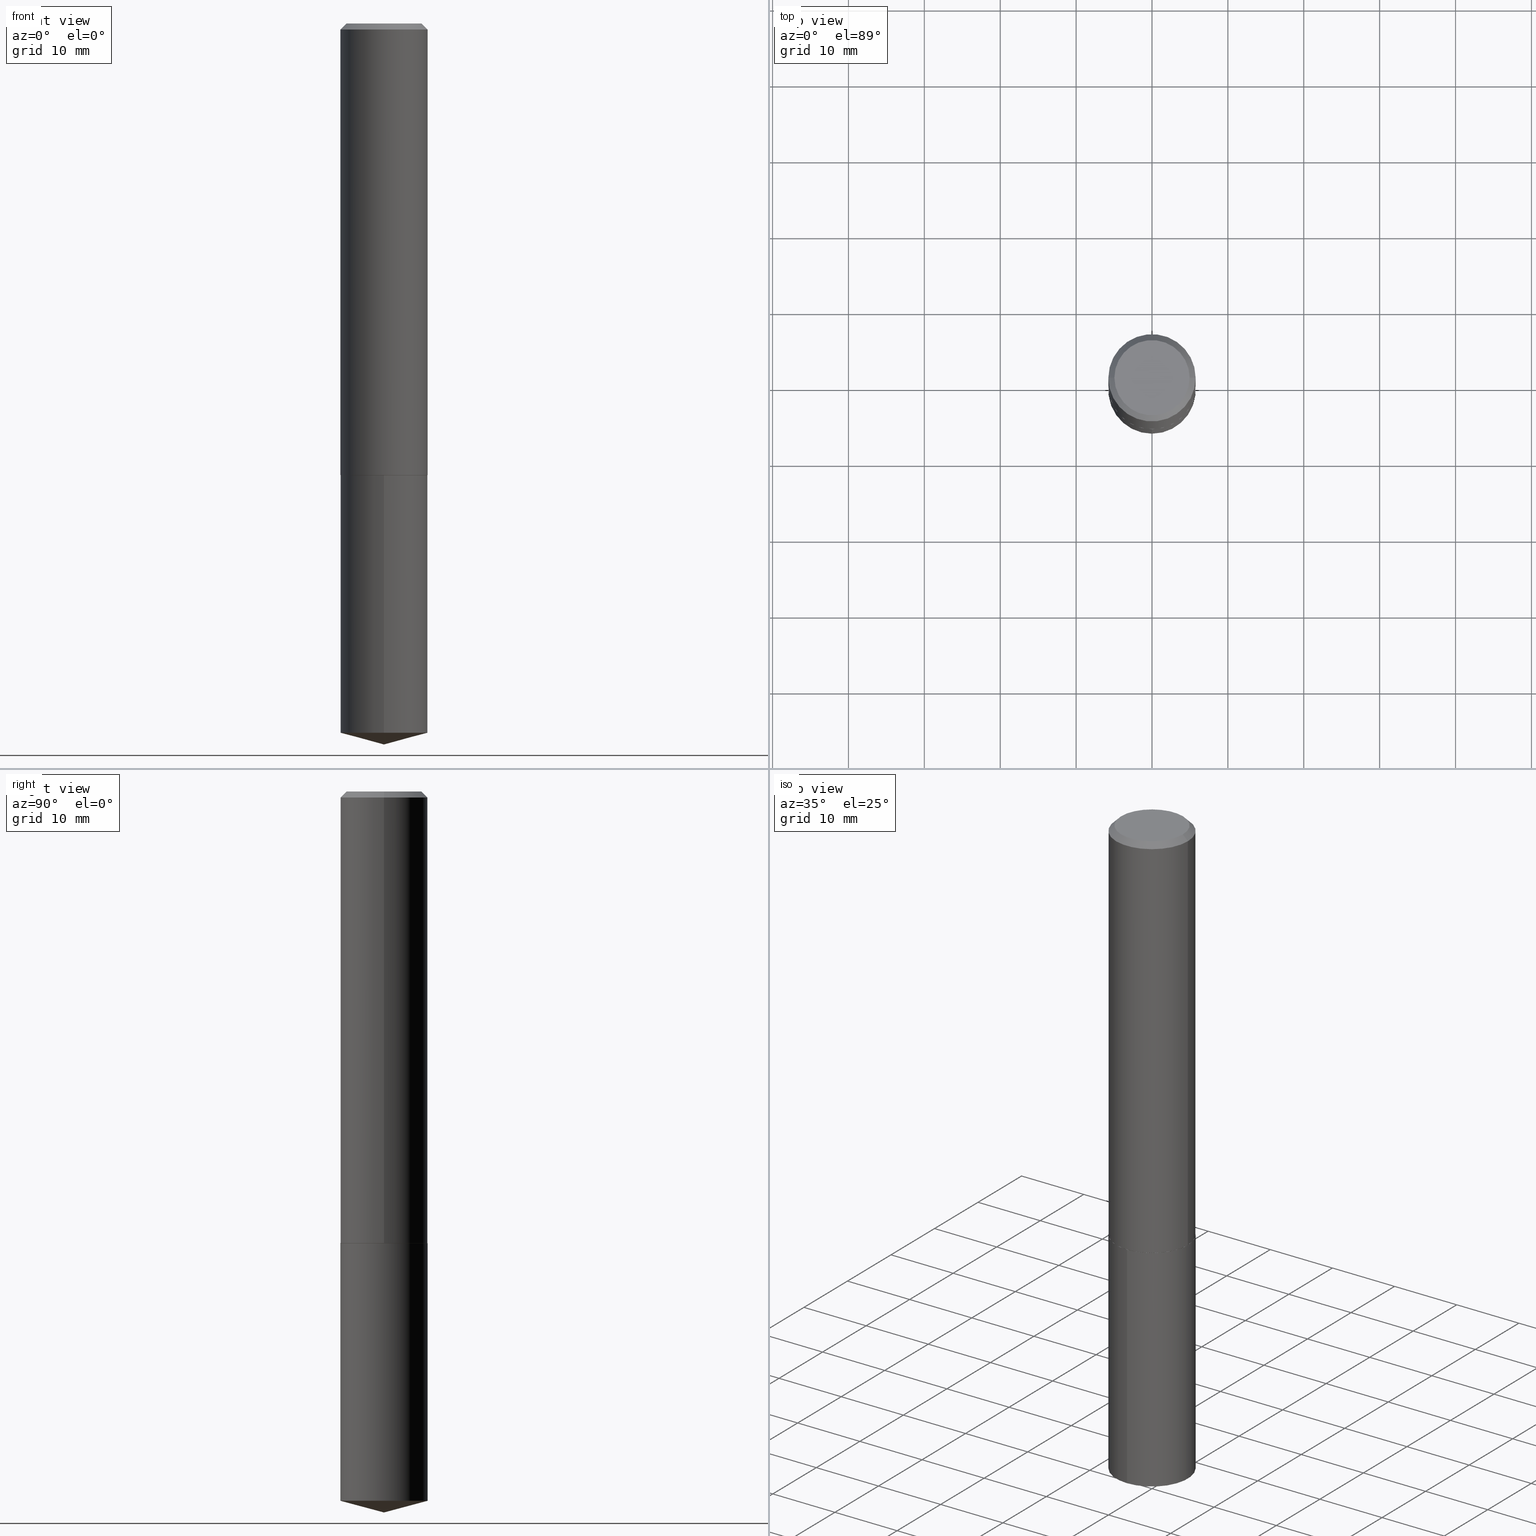
[diagram: canonical four-view strip — front | top / right | iso, engineering-drawing reading convention]
A machine part, canonical four-view strip (front | top / right | iso — engineering-drawing reading convention). The complete STEP part file that produces these views, byte-faithful:
ISO-10303-21;
HEADER;
FILE_DESCRIPTION (( 'STEP AP203' ),
    '1' );
FILE_NAME ('63033.STEP',
    '2024-04-23T08:12:41',
    ( '' ),
    ( '' ),
    'SwSTEP 2.0',
    'SolidWorks 2023',
    '' );
FILE_SCHEMA (( 'CONFIG_CONTROL_DESIGN' ));
ENDSEC;

DATA;
#1 = ADVANCED_FACE ( 'NONE', ( #290 ), #223, .T. ) ;
#2 = VECTOR ( 'NONE', #175, 39.37007874015748143 ) ;
#3 = DIRECTION ( 'NONE',  ( -0.7071067811865453523, 2.468850131082234184E-15, -0.7071067811865496822 ) ) ;
#4 = VERTEX_POINT ( 'NONE', #174 ) ;
#5 = LINE ( 'NONE', #368, #215 ) ;
#6 = CARTESIAN_POINT ( 'NONE',  ( -0.2264000000000002399, -6.568729689943663305E-15, -2.342100000000000293 ) ) ;
#7 = CLOSED_SHELL ( 'NONE', ( #222, #249, #322, #250, #9, #58, #125, #329 ) ) ;
#8 = AXIS2_PLACEMENT_3D ( 'NONE', #259, #189, #298 ) ;
#9 = ADVANCED_FACE ( 'NONE', ( #356 ), #291, .T. ) ;
#10 = EDGE_CURVE ( 'NONE', #34, #81, #168, .T. ) ;
#11 = DIRECTION ( 'NONE',  ( 0.000000000000000000, 0.000000000000000000, 1.000000000000000000 ) ) ;
#12 = DIRECTION ( 'NONE',  ( -2.445468806185136877E-29, 3.491481338843145188E-15, 1.000000000000000000 ) ) ;
#13 = APPLICATION_PROTOCOL_DEFINITION ( 'international standard', 'config_control_design', 1994, #102 ) ;
#14 = SECURITY_CLASSIFICATION_LEVEL ( 'unclassified' ) ;
#15 = DIRECTION ( 'NONE',  ( -2.445529673311821872E-29, 3.491394173653390530E-15, 1.000000000000000000 ) ) ;
#16 = COORDINATED_UNIVERSAL_TIME_OFFSET ( 5, 0, .BEHIND. ) ;
#17 =( NAMED_UNIT ( * ) SI_UNIT ( $, .STERADIAN. ) SOLID_ANGLE_UNIT ( ) );
#18 = DIRECTION ( 'NONE',  ( -2.445529673311821872E-29, 3.491394173653390530E-15, 1.000000000000000000 ) ) ;
#19 = FACE_OUTER_BOUND ( 'NONE', #127, .T. ) ;
#20 = DIRECTION ( 'NONE',  ( 6.863315791527700570E-15, 0.9659258262890704216, 0.2588190451025128569 ) ) ;
#21 = ORIENTED_EDGE ( 'NONE', *, *, #331, .T. ) ;
#22 = FACE_OUTER_BOUND ( 'NONE', #379, .T. ) ;
#23 = ORIENTED_EDGE ( 'NONE', *, *, #10, .T. ) ;
#24 = COORDINATED_UNIVERSAL_TIME_OFFSET ( 5, 0, .BEHIND. ) ;
#25 = AXIS2_PLACEMENT_3D ( 'NONE', #82, #313, #360 ) ;
#26 = EDGE_LOOP ( 'NONE', ( #85, #169, #120 ) ) ;
#27 = APPROVAL ( #41, 'UNSPECIFIED' ) ;
#28 = EDGE_LOOP ( 'NONE', ( #131, #364, #321, #311 ) ) ;
#29 = EDGE_CURVE ( 'NONE', #101, #195, #80, .T. ) ;
#30 = ADVANCED_FACE ( 'NONE', ( #19 ), #383, .T. ) ;
#31 = DIRECTION ( 'NONE',  ( -6.982962677686265922E-15, -1.000000000000000000, 3.619939920933211627E-15 ) ) ;
#32 = ORIENTED_EDGE ( 'NONE', *, *, #90, .T. ) ;
#33 = DIRECTION ( 'NONE',  ( -2.445468806185136597E-29, 3.491481338843145583E-15, 1.000000000000000000 ) ) ;
#34 = VERTEX_POINT ( 'NONE', #144 ) ;
#35 = AXIS2_PLACEMENT_3D ( 'NONE', #111, #199, #205 ) ;
#36 = APPROVAL_PERSON_ORGANIZATION ( #267, #286, #158 ) ;
#37 = PLANE ( 'NONE',  #91 ) ;
#38 = AXIS2_PLACEMENT_3D ( 'NONE', #71, #138, #31 ) ;
#39 = ADVANCED_BREP_SHAPE_REPRESENTATION ( '63033', ( #183, #191, #283 ), #216 ) ;
#40 = VECTOR ( 'NONE', #289, 39.37007874015748143 ) ;
#41 = APPROVAL_STATUS ( 'not_yet_approved' ) ;
#42 = ORGANIZATION ( 'UNSPECIFIED', 'UNSPECIFIED', '' ) ;
#43 = DIRECTION ( 'NONE',  ( -2.445468806185136877E-29, 3.491481338843145188E-15, 1.000000000000000000 ) ) ;
#44 = ADVANCED_FACE ( 'NONE', ( #53 ), #178, .T. ) ;
#45 = EDGE_LOOP ( 'NONE', ( #21, #354 ) ) ;
#46 = APPROVAL_DATE_TIME ( #261, #286 ) ;
#47 = DATE_AND_TIME ( #226, #274 ) ;
#48 = EDGE_CURVE ( 'NONE', #81, #195, #367, .T. ) ;
#49 = CIRCLE ( 'NONE', #147, 0.2263999999999999624 ) ;
#50 = CC_DESIGN_APPROVAL ( #286, ( #128 ) ) ;
#51 = EDGE_LOOP ( 'NONE', ( #310, #134 ) ) ;
#52 = CARTESIAN_POINT ( 'NONE',  ( 9.146772584766040956E-29, -1.305851248829841244E-14, -3.740200000000000191 ) ) ;
#53 = FACE_OUTER_BOUND ( 'NONE', #26, .T. ) ;
#54 = APPROVAL_DATE_TIME ( #373, #172 ) ;
#55 = CC_DESIGN_DATE_AND_TIME_ASSIGNMENT ( #275, #340, ( #69 ) ) ;
#56 = DIRECTION ( 'NONE',  ( 1.000000000000000000, -6.982962677686265133E-15, 0.000000000000000000 ) ) ;
#57 = EDGE_LOOP ( 'NONE', ( #344, #107, #380, #113 ) ) ;
#58 = ADVANCED_FACE ( 'NONE', ( #22 ), #359, .T. ) ;
#59 = FACE_OUTER_BOUND ( 'NONE', #51, .T. ) ;
#60 = CONICAL_SURFACE ( 'NONE', #342, 146.9311341562577695, 1.308996938995751869 ) ;
#61 = CARTESIAN_POINT ( 'NONE',  ( -0.1951499999999999624, 1.417279562469898159E-15, 1.206277097150418490E-18 ) ) ;
#62 = CARTESIAN_POINT ( 'NONE',  ( 5.727532490966208999E-29, -8.177398443704531239E-15, -2.342100000000000293 ) ) ;
#63 = DIRECTION ( 'NONE',  ( 1.000000000000000000, -6.982962677686269077E-15, 0.000000000000000000 ) ) ;
#64 = ORIENTED_EDGE ( 'NONE', *, *, #155, .F. ) ;
#65 = AXIS2_PLACEMENT_3D ( 'NONE', #264, #15, #204 ) ;
#66 = ORIENTED_EDGE ( 'NONE', *, *, #88, .F. ) ;
#67 = CARTESIAN_POINT ( 'NONE',  ( 7.642090019328599159E-31, -1.091087918388489774E-16, -0.03125000000000019429 ) ) ;
#68 = CONICAL_SURFACE ( 'NONE', #162, 0.2264000000000002399, 0.7853981633966629072 ) ;
#69 = SECURITY_CLASSIFICATION ( '', '', #14 ) ;
#70 = CARTESIAN_POINT ( 'NONE',  ( 0.2264000000000001012, -1.580942750228171416E-15, 1.103966422040200291E-29 ) ) ;
#71 = CARTESIAN_POINT ( 'NONE',  ( 5.728755225369301801E-29, -8.179144184373953531E-15, -2.342600000000000016 ) ) ;
#72 = CARTESIAN_POINT ( 'NONE',  ( 1.608668753760956681E-15, 0.2263999999999871671, -3.679536302833595673 ) ) ;
#73 = AXIS2_PLACEMENT_3D ( 'NONE', #164, #135, #265 ) ;
#74 = PERSON_AND_ORGANIZATION ( #115, #42 ) ;
#75 = LINE ( 'NONE', #214, #324 ) ;
#76 = CC_DESIGN_PERSON_AND_ORGANIZATION_ASSIGNMENT ( #375, #100, ( #69 ) ) ;
#77 = PRODUCT_DEFINITION ( 'UNKNOWN', '', #128, #166 ) ;
#78 = DIRECTION ( 'NONE',  ( -6.982962677686265922E-15, -1.000000000000000000, 3.619939920933211627E-15 ) ) ;
#79 = CIRCLE ( 'NONE', #209, 0.2263999999999999624 ) ;
#80 = LINE ( 'NONE', #198, #273 ) ;
#81 = VERTEX_POINT ( 'NONE', #325 ) ;
#82 = CARTESIAN_POINT ( 'NONE',  ( 7.642090019328599159E-31, -1.091087918388489774E-16, -0.03125000000000019429 ) ) ;
#83 = CIRCLE ( 'NONE', #253, 0.2259000000000011277 ) ;
#84 = DIRECTION ( 'NONE',  ( 1.000000000000000000, -6.982962677686265922E-15, 0.000000000000000000 ) ) ;
#85 = ORIENTED_EDGE ( 'NONE', *, *, #190, .F. ) ;
#86 = COORDINATED_UNIVERSAL_TIME_OFFSET ( 5, 0, .BEHIND. ) ;
#87 = DIRECTION ( 'NONE',  ( -1.000000000000000000, 6.982962677686265922E-15, 0.000000000000000000 ) ) ;
#88 = EDGE_CURVE ( 'NONE', #181, #137, #75, .T. ) ;
#89 = DIRECTION ( 'NONE',  ( -2.445529673311821591E-29, 3.491394173653390530E-15, 1.000000000000000000 ) ) ;
#90 = EDGE_CURVE ( 'NONE', #34, #101, #369, .T. ) ;
#91 = AXIS2_PLACEMENT_3D ( 'NONE', #366, #148, #121 ) ;
#92 = CARTESIAN_POINT ( 'NONE',  ( 5.728755225369301801E-29, -8.179144184373953531E-15, -2.342600000000000016 ) ) ;
#93 = ORIENTED_EDGE ( 'NONE', *, *, #365, .T. ) ;
#94 = APPLICATION_PROTOCOL_DEFINITION ( 'international standard', 'config_control_design', 1994, #262 ) ;
#95 = CARTESIAN_POINT ( 'NONE',  ( 0.000000000000000000, 0.000000000000000000, 0.000000000000000000 ) ) ;
#96 = CLOSED_SHELL ( 'NONE', ( #1, #44, #240, #30, #233 ) ) ;
#97 = CIRCLE ( 'NONE', #260, 0.2263999999999999624 ) ;
#98 = LOCAL_TIME ( 4, 12, 41.00000000000000000, #104 ) ;
#99 = EDGE_CURVE ( 'NONE', #315, #303, #79, .T. ) ;
#100 = PERSON_AND_ORGANIZATION_ROLE ( 'classification_officer' ) ;
#101 = VERTEX_POINT ( 'NONE', #219 ) ;
#102 = APPLICATION_CONTEXT ( 'configuration controlled 3d designs of mechanical parts and assemblies' ) ;
#103 = CARTESIAN_POINT ( 'NONE',  ( 5.727532490966208999E-29, -8.177398443704531239E-15, -2.342100000000000293 ) ) ;
#104 = COORDINATED_UNIVERSAL_TIME_OFFSET ( 5, 0, .BEHIND. ) ;
#105 = EDGE_CURVE ( 'NONE', #81, #137, #349, .T. ) ;
#106 = AXIS2_PLACEMENT_3D ( 'NONE', #103, #114, #229 ) ;
#107 = ORIENTED_EDGE ( 'NONE', *, *, #218, .T. ) ;
#108 = CARTESIAN_POINT ( 'NONE',  ( 0.2264000000000002399, -9.758341193932704824E-15, -2.342100000000000293 ) ) ;
#109 = VERTEX_POINT ( 'NONE', #72 ) ;
#110 = EDGE_CURVE ( 'NONE', #361, #109, #282, .T. ) ;
#111 = CARTESIAN_POINT ( 'NONE',  ( 0.000000000000000000, 0.000000000000000000, 0.000000000000000000 ) ) ;
#112 = CYLINDRICAL_SURFACE ( 'NONE', #35, 0.2264000000000001012 ) ;
#113 = ORIENTED_EDGE ( 'NONE', *, *, #105, .F. ) ;
#114 = DIRECTION ( 'NONE',  ( -2.445468806185136597E-29, 3.491481338843145583E-15, 1.000000000000000000 ) ) ;
#115 = PERSON ( 'UNSPECIFIED', 'UNSPECIFIED', 'UNSPECIFIED', ('UNSPECIFIED'), ('UNSPECIFIED'), ('UNSPECIFIED') ) ;
#116 = FACE_OUTER_BOUND ( 'NONE', #179, .T. ) ;
#117 = AXIS2_PLACEMENT_3D ( 'NONE', #385, #343, #87 ) ;
#118 = ORIENTED_EDGE ( 'NONE', *, *, #29, .T. ) ;
#119 = CARTESIAN_POINT ( 'NONE',  ( 5.727532490966208999E-29, -8.177398443704531239E-15, -2.342100000000000293 ) ) ;
#120 = ORIENTED_EDGE ( 'NONE', *, *, #110, .F. ) ;
#121 = DIRECTION ( 'NONE',  ( -1.000000000000000000, 6.982962677686265922E-15, -4.876176775795935793E-29 ) ) ;
#122 = ORIENTED_EDGE ( 'NONE', *, *, #48, .F. ) ;
#123 = CC_DESIGN_PERSON_AND_ORGANIZATION_ASSIGNMENT ( #192, #297, ( #128 ) ) ;
#124 = CC_DESIGN_PERSON_AND_ORGANIZATION_ASSIGNMENT ( #221, #350, ( #372 ) ) ;
#125 = ADVANCED_FACE ( 'NONE', ( #234 ), #126, .T. ) ;
#126 = CONICAL_SURFACE ( 'NONE', #25, 0.2263999999999999624, 0.7853981633974452814 ) ;
#127 = EDGE_LOOP ( 'NONE', ( #277, #165, #207, #143 ) ) ;
#128 = PRODUCT_DEFINITION_FORMATION_WITH_SPECIFIED_SOURCE ( 'ANY', '', #372, .NOT_KNOWN. ) ;
#129 = DIRECTION ( 'NONE',  ( -2.445468806185136597E-29, 3.491481338843145583E-15, 1.000000000000000000 ) ) ;
#130 = EDGE_CURVE ( 'NONE', #109, #361, #238, .T. ) ;
#131 = ORIENTED_EDGE ( 'NONE', *, *, #110, .T. ) ;
#132 = COORDINATED_UNIVERSAL_TIME_OFFSET ( 5, 0, .BEHIND. ) ;
#133 = CARTESIAN_POINT ( 'NONE',  ( 9.146484909458931815E-29, -1.305892087464545381E-14, -3.740200000000000191 ) ) ;
#134 = ORIENTED_EDGE ( 'NONE', *, *, #293, .F. ) ;
#135 = DIRECTION ( 'NONE',  ( -2.445529673311821872E-29, 3.491394173653390530E-15, 1.000000000000000000 ) ) ;
#136 = APPROVAL_DATE_TIME ( #335, #27 ) ;
#137 = VERTEX_POINT ( 'NONE', #227 ) ;
#138 = DIRECTION ( 'NONE',  ( -2.445529673311821872E-29, 3.491394173653390530E-15, 1.000000000000000000 ) ) ;
#139 = AXIS2_PLACEMENT_3D ( 'NONE', #95, #129, #251 ) ;
#140 = FACE_OUTER_BOUND ( 'NONE', #382, .T. ) ;
#141 = ORIENTED_EDGE ( 'NONE', *, *, #272, .T. ) ;
#142 = CARTESIAN_POINT ( 'NONE',  ( 7.642090019328599159E-31, -1.091087918388489774E-16, -0.03125000000000019429 ) ) ;
#143 = ORIENTED_EDGE ( 'NONE', *, *, #99, .F. ) ;
#144 = CARTESIAN_POINT ( 'NONE',  ( 0.2259000000000011277, -9.756595453263288842E-15, -2.342600000000000016 ) ) ;
#145 = CARTESIAN_POINT ( 'NONE',  ( 5.727532490966208999E-29, -8.177398443704531239E-15, -2.342100000000000293 ) ) ;
#146 = CARTESIAN_POINT ( 'NONE',  ( -1.580942750228113237E-15, -0.2264000000000081780, -2.342599999999999127 ) ) ;
#147 = AXIS2_PLACEMENT_3D ( 'NONE', #67, #180, #184 ) ;
#148 = DIRECTION ( 'NONE',  ( 2.438088387897960049E-29, -3.491481338843145188E-15, -1.000000000000000000 ) ) ;
#149 = ORIENTED_EDGE ( 'NONE', *, *, #331, .F. ) ;
#150 = CARTESIAN_POINT ( 'NONE',  ( 9.146770084120878494E-29, -1.305851248829841244E-14, -3.740200000000000191 ) ) ;
#151 = EDGE_CURVE ( 'NONE', #303, #315, #230, .T. ) ;
#152 = CARTESIAN_POINT ( 'NONE',  ( -1.580942750228113237E-15, -0.2264000000000081780, -2.342599999999999127 ) ) ;
#153 = CC_DESIGN_APPROVAL ( #172, ( #69 ) ) ;
#154 = LINE ( 'NONE', #133, #2 ) ;
#155 = EDGE_CURVE ( 'NONE', #337, #109, #336, .T. ) ;
#156 = CALENDAR_DATE ( 2024, 23, 4 ) ;
#157 = CARTESIAN_POINT ( 'NONE',  ( 5.728755225369301801E-29, -8.179144184373953531E-15, -2.342600000000000016 ) ) ;
#158 = APPROVAL_ROLE ( '' ) ;
#159 = ORIENTED_EDGE ( 'NONE', *, *, #355, .F. ) ;
#160 = APPROVAL_ROLE ( '' ) ;
#161 = PERSON_AND_ORGANIZATION_ROLE ( 'creator' ) ;
#162 = AXIS2_PLACEMENT_3D ( 'NONE', #119, #242, #63 ) ;
#163 = LENGTH_MEASURE_WITH_UNIT ( LENGTH_MEASURE( 0.02539999999999999897 ), #346 );
#164 = CARTESIAN_POINT ( 'NONE',  ( 5.728755225369301801E-29, -8.179144184373953531E-15, -2.342600000000000016 ) ) ;
#165 = ORIENTED_EDGE ( 'NONE', *, *, #130, .T. ) ;
#166 = DESIGN_CONTEXT ( 'detailed design', #102, 'design' ) ;
#167 = PLANE ( 'NONE',  #288 ) ;
#168 = LINE ( 'NONE', #108, #287 ) ;
#169 = ORIENTED_EDGE ( 'NONE', *, *, #155, .T. ) ;
#170 = AXIS2_PLACEMENT_3D ( 'NONE', #376, #377, #306 ) ;
#171 = CARTESIAN_POINT ( 'NONE',  ( 5.728755225369301801E-29, -8.179144184373953531E-15, -2.342600000000000016 ) ) ;
#172 = APPROVAL ( #258, 'UNSPECIFIED' ) ;
#173 = UNCERTAINTY_MEASURE_WITH_UNIT (LENGTH_MEASURE( 1.000000000000000082E-05 ), #332, 'distance_accuracy_value', 'NONE');
#174 = CARTESIAN_POINT ( 'NONE',  ( -0.2263999999999999624, -2.534584864010821841E-15, -0.03125000000000019429 ) ) ;
#175 = DIRECTION ( 'NONE',  ( -6.745023994389846233E-15, -0.9659258262890685343, 0.2588190451025196293 ) ) ;
#176 = DIRECTION ( 'NONE',  ( -2.445468806185136597E-29, 3.491481338843145583E-15, 1.000000000000000000 ) ) ;
#177 = DIRECTION ( 'NONE',  ( -2.445529673311821872E-29, 3.491394173653390530E-15, 1.000000000000000000 ) ) ;
#178 = CONICAL_SURFACE ( 'NONE', #170, 146.9311341562577695, 1.308996938995751869 ) ;
#179 = EDGE_LOOP ( 'NONE', ( #64, #363, #388 ) ) ;
#180 = DIRECTION ( 'NONE',  ( -2.445468806185136597E-29, 3.491481338843145583E-15, 1.000000000000000000 ) ) ;
#181 = VERTEX_POINT ( 'NONE', #268 ) ;
#182 = CIRCLE ( 'NONE', #386, 0.1951499999999999624 ) ;
#183 = MANIFOLD_SOLID_BREP ( 'Body-Move/Copy2[1]', #96 ) ;
#184 = DIRECTION ( 'NONE',  ( 1.000000000000000000, -6.982962677686265922E-15, 0.000000000000000000 ) ) ;
#185 = DIRECTION ( 'NONE',  ( 0.7071067811865453523, -7.319954787623248157E-15, -0.7071067811865496822 ) ) ;
#186 = EDGE_LOOP ( 'NONE', ( #197, #294, #23, #339 ) ) ;
#187 = CC_DESIGN_DATE_AND_TIME_ASSIGNMENT ( #47, #308, ( #77 ) ) ;
#188 = CARTESIAN_POINT ( 'NONE',  ( 0.000000000000000000, 0.000000000000000000, 0.000000000000000000 ) ) ;
#189 = DIRECTION ( 'NONE',  ( -2.445529673311821872E-29, 3.491394173653390530E-15, 1.000000000000000000 ) ) ;
#190 = EDGE_CURVE ( 'NONE', #337, #361, #154, .T. ) ;
#191 = MANIFOLD_SOLID_BREP ( 'Body-Move/Copy2[2]', #7 ) ;
#192 = PERSON_AND_ORGANIZATION ( #115, #42 ) ;
#193 = VECTOR ( 'NONE', #3, 39.37007874015748143 ) ;
#194 = APPROVAL_PERSON_ORGANIZATION ( #74, #27, #220 ) ;
#195 = VERTEX_POINT ( 'NONE', #6 ) ;
#196 = PLANE ( 'NONE',  #224 ) ;
#197 = ORIENTED_EDGE ( 'NONE', *, *, #29, .F. ) ;
#198 = CARTESIAN_POINT ( 'NONE',  ( -0.2264000000000002399, -6.568729689943663305E-15, -2.342100000000000293 ) ) ;
#199 = DIRECTION ( 'NONE',  ( -2.445468806185136597E-29, 3.491481338843145583E-15, 1.000000000000000000 ) ) ;
#200 = ORIENTED_EDGE ( 'NONE', *, *, #272, .F. ) ;
#201 = PRODUCT_RELATED_PRODUCT_CATEGORY ( 'detail', '', ( #372 ) ) ;
#202 = EDGE_CURVE ( 'NONE', #361, #303, #252, .T. ) ;
#203 = AXIS2_PLACEMENT_3D ( 'NONE', #62, #176, #276 ) ;
#204 = DIRECTION ( 'NONE',  ( -6.982962677686265922E-15, -1.000000000000000000, 2.413293280622141084E-15 ) ) ;
#205 = DIRECTION ( 'NONE',  ( 1.000000000000000000, -6.982962677686266711E-15, 4.876176775795935232E-29 ) ) ;
#206 = CARTESIAN_POINT ( 'NONE',  ( 5.728755225369301801E-29, -8.179144184373953531E-15, -2.342600000000000016 ) ) ;
#207 = ORIENTED_EDGE ( 'NONE', *, *, #202, .T. ) ;
#208 = CARTESIAN_POINT ( 'NONE',  ( -0.2263999999999999624, 1.471833958389321526E-15, -0.03125000000000019429 ) ) ;
#209 = AXIS2_PLACEMENT_3D ( 'NONE', #92, #348, #217 ) ;
#210 = CARTESIAN_POINT ( 'NONE',  ( -0.2264000000000001012, 1.608668753760867540E-15, -1.113646904433711261E-29 ) ) ;
#211 = CC_DESIGN_PERSON_AND_ORGANIZATION_ASSIGNMENT ( #358, #295, ( #128 ) ) ;
#212 = EDGE_CURVE ( 'NONE', #232, #4, #389, .T. ) ;
#213 = CARTESIAN_POINT ( 'NONE',  ( -2.949913012720677696E-47, 4.211693974208505914E-33, 1.206277097160139237E-18 ) ) ;
#214 = CARTESIAN_POINT ( 'NONE',  ( 0.2263999999999999624, -1.662325538534323604E-15, -0.03125000000000019429 ) ) ;
#215 = VECTOR ( 'NONE', #89, 39.37007874015748143 ) ;
#216 =( GEOMETRIC_REPRESENTATION_CONTEXT ( 3 ) GLOBAL_UNCERTAINTY_ASSIGNED_CONTEXT ( ( #173 ) ) GLOBAL_UNIT_ASSIGNED_CONTEXT ( ( #332, #225, #17 ) ) REPRESENTATION_CONTEXT ( 'NONE', 'WORKASPACE' ) );
#217 = DIRECTION ( 'NONE',  ( -6.982962677686265922E-15, -1.000000000000000000, 3.619939920933211627E-15 ) ) ;
#218 = EDGE_CURVE ( 'NONE', #195, #4, #248, .T. ) ;
#219 = CARTESIAN_POINT ( 'NONE',  ( -0.2259000000000011277, -6.571378917117770561E-15, -2.342600000000000016 ) ) ;
#220 = APPROVAL_ROLE ( '' ) ;
#221 = PERSON_AND_ORGANIZATION ( #115, #42 ) ;
#222 = ADVANCED_FACE ( 'NONE', ( #381 ), #351, .T. ) ;
#223 = CYLINDRICAL_SURFACE ( 'NONE', #38, 0.2263999999999999624 ) ;
#224 = AXIS2_PLACEMENT_3D ( 'NONE', #236, #338, #285 ) ;
#225 =( NAMED_UNIT ( * ) PLANE_ANGLE_UNIT ( ) SI_UNIT ( $, .RADIAN. ) );
#226 = CALENDAR_DATE ( 2024, 23, 4 ) ;
#227 = CARTESIAN_POINT ( 'NONE',  ( 0.2263999999999999624, -1.690051542067019531E-15, -0.03125000000000019429 ) ) ;
#228 = DIRECTION ( 'NONE',  ( -0.7071067811859920171, 7.493145998868345720E-15, 0.7071067811871027953 ) ) ;
#229 = DIRECTION ( 'NONE',  ( 1.000000000000000000, -6.982962677686269077E-15, 0.000000000000000000 ) ) ;
#230 = CIRCLE ( 'NONE', #271, 0.2263999999999999624 ) ;
#231 = LOCAL_TIME ( 4, 12, 41.00000000000000000, #86 ) ;
#232 = VERTEX_POINT ( 'NONE', #61 ) ;
#233 = ADVANCED_FACE ( 'NONE', ( #140 ), #196, .F. ) ;
#234 = FACE_OUTER_BOUND ( 'NONE', #246, .T. ) ;
#235 = CALENDAR_DATE ( 2024, 23, 4 ) ;
#236 = CARTESIAN_POINT ( 'NONE',  ( 5.728755225369301801E-29, -8.179144184373953531E-15, -2.342600000000000016 ) ) ;
#237 = ORIENTED_EDGE ( 'NONE', *, *, #105, .T. ) ;
#238 = CIRCLE ( 'NONE', #65, 0.2263999999999999624 ) ;
#239 = DIRECTION ( 'NONE',  ( 1.000000000000000000, -6.982962677686265922E-15, 4.876176775795935793E-29 ) ) ;
#240 = ADVANCED_FACE ( 'NONE', ( #116 ), #60, .T. ) ;
#241 = ORIENTED_EDGE ( 'NONE', *, *, #212, .T. ) ;
#242 = DIRECTION ( 'NONE',  ( -2.445468806185136597E-29, 3.491481338843145583E-15, 1.000000000000000000 ) ) ;
#243 = DIRECTION ( 'NONE',  ( 1.000000000000000000, -6.982962677686267499E-15, 4.876204817626621621E-29 ) ) ;
#244 = DIRECTION ( 'NONE',  ( 1.000000000000000000, -6.982962677686267499E-15, 4.876204817626621621E-29 ) ) ;
#245 = CC_DESIGN_SECURITY_CLASSIFICATION ( #69, ( #128 ) ) ;
#246 = EDGE_LOOP ( 'NONE', ( #66, #149, #241, #141 ) ) ;
#247 = DIMENSIONAL_EXPONENTS ( 1.000000000000000000, 0.000000000000000000, 0.000000000000000000, 0.000000000000000000, 0.000000000000000000, 0.000000000000000000, 0.000000000000000000 ) ;
#248 = LINE ( 'NONE', #210, #292 ) ;
#249 = ADVANCED_FACE ( 'NONE', ( #318 ), #112, .T. ) ;
#250 = ADVANCED_FACE ( 'NONE', ( #59 ), #167, .F. ) ;
#251 = DIRECTION ( 'NONE',  ( 1.000000000000000000, -6.982962677686266711E-15, 4.876176775795935232E-29 ) ) ;
#252 = LINE ( 'NONE', #152, #40 ) ;
#253 = AXIS2_PLACEMENT_3D ( 'NONE', #206, #33, #56 ) ;
#254 = ORIENTED_EDGE ( 'NONE', *, *, #151, .T. ) ;
#255 = LOCAL_TIME ( 4, 12, 41.00000000000000000, #24 ) ;
#256 = CARTESIAN_POINT ( 'NONE',  ( -1.580942750228080697E-15, -0.2264000000000128410, -3.679536302833594785 ) ) ;
#257 = MECHANICAL_CONTEXT ( 'NONE', #262, 'mechanical' ) ;
#258 = APPROVAL_STATUS ( 'not_yet_approved' ) ;
#259 = CARTESIAN_POINT ( 'NONE',  ( 8.998272625276659076E-29, -1.284691580263287226E-14, -3.679536302833595229 ) ) ;
#260 = AXIS2_PLACEMENT_3D ( 'NONE', #142, #362, #84 ) ;
#261 = DATE_AND_TIME ( #353, #255 ) ;
#262 = APPLICATION_CONTEXT ( 'configuration controlled 3d designs of mechanical parts and assemblies' ) ;
#263 = SHAPE_DEFINITION_REPRESENTATION ( #327, #39 ) ;
#264 = CARTESIAN_POINT ( 'NONE',  ( 8.998272625276659076E-29, -1.284691580263287226E-14, -3.679536302833595229 ) ) ;
#265 = DIRECTION ( 'NONE',  ( -6.982962677686265922E-15, -1.000000000000000000, 3.619939920933211627E-15 ) ) ;
#266 = ORIENTED_EDGE ( 'NONE', *, *, #212, .F. ) ;
#267 = PERSON_AND_ORGANIZATION ( #115, #42 ) ;
#268 = CARTESIAN_POINT ( 'NONE',  ( 0.1951499999999999624, -1.500575861399718873E-15, 1.206277097170150798E-18 ) ) ;
#269 = CC_DESIGN_PERSON_AND_ORGANIZATION_ASSIGNMENT ( #330, #161, ( #77 ) ) ;
#270 = APPROVAL_STATUS ( 'not_yet_approved' ) ;
#271 = AXIS2_PLACEMENT_3D ( 'NONE', #302, #18, #78 ) ;
#272 = EDGE_CURVE ( 'NONE', #4, #137, #97, .T. ) ;
#273 = VECTOR ( 'NONE', #228, 39.37007874015748854 ) ;
#274 = LOCAL_TIME ( 4, 12, 41.00000000000000000, #16 ) ;
#275 = DATE_AND_TIME ( #235, #231 ) ;
#276 = DIRECTION ( 'NONE',  ( 1.000000000000000000, -6.982962677686269077E-15, 0.000000000000000000 ) ) ;
#277 = ORIENTED_EDGE ( 'NONE', *, *, #345, .F. ) ;
#278 = DIRECTION ( 'NONE',  ( -2.445468806185136597E-29, 3.491481338843145583E-15, 1.000000000000000000 ) ) ;
#279 = ORIENTED_EDGE ( 'NONE', *, *, #88, .T. ) ;
#280 = DIRECTION ( 'NONE',  ( -6.982962677686265922E-15, -1.000000000000000000, 3.510303681827574563E-15 ) ) ;
#281 = EDGE_CURVE ( 'NONE', #195, #81, #374, .T. ) ;
#282 = CIRCLE ( 'NONE', #8, 0.2263999999999999624 ) ;
#283 = AXIS2_PLACEMENT_3D ( 'NONE', #188, #11, #328 ) ;
#284 = CARTESIAN_POINT ( 'NONE',  ( 1.608668753760956681E-15, 0.2263999999999917745, -2.342600000000000904 ) ) ;
#285 = DIRECTION ( 'NONE',  ( 6.982962677686265922E-15, 1.000000000000000000, -3.491394173653390530E-15 ) ) ;
#286 = APPROVAL ( #270, 'UNSPECIFIED' ) ;
#287 = VECTOR ( 'NONE', #341, 39.37007874015748854 ) ;
#288 = AXIS2_PLACEMENT_3D ( 'NONE', #171, #314, #239 ) ;
#289 = DIRECTION ( 'NONE',  ( -2.445529673311821591E-29, 3.491394173653390530E-15, 1.000000000000000000 ) ) ;
#290 = FACE_OUTER_BOUND ( 'NONE', #28, .T. ) ;
#291 = CONICAL_SURFACE ( 'NONE', #323, 0.2264000000000002399, 0.7853981633966629072 ) ;
#292 = VECTOR ( 'NONE', #12, 39.37007874015748143 ) ;
#293 = EDGE_CURVE ( 'NONE', #101, #34, #83, .T. ) ;
#294 = ORIENTED_EDGE ( 'NONE', *, *, #293, .T. ) ;
#295 = PERSON_AND_ORGANIZATION_ROLE ( 'creator' ) ;
#296 = DIRECTION ( 'NONE',  ( 1.000000000000000000, -6.982962677686265133E-15, 0.000000000000000000 ) ) ;
#297 = PERSON_AND_ORGANIZATION_ROLE ( 'design_supplier' ) ;
#298 = DIRECTION ( 'NONE',  ( -6.982962677686265922E-15, -1.000000000000000000, 2.413293280622141084E-15 ) ) ;
#299 = CALENDAR_DATE ( 2024, 23, 4 ) ;
#300 = VECTOR ( 'NONE', #20, 39.37007874015748143 ) ;
#301 = APPROVAL_PERSON_ORGANIZATION ( #333, #172, #160 ) ;
#302 = CARTESIAN_POINT ( 'NONE',  ( 5.728755225369301801E-29, -8.179144184373953531E-15, -2.342600000000000016 ) ) ;
#303 = VERTEX_POINT ( 'NONE', #146 ) ;
#304 = DIRECTION ( 'NONE',  ( 1.000000000000000000, -6.982962677686269077E-15, 0.000000000000000000 ) ) ;
#305 = EDGE_LOOP ( 'NONE', ( #32, #118, #122, #357 ) ) ;
#306 = DIRECTION ( 'NONE',  ( -6.982962677686265922E-15, -1.000000000000000000, 3.510303681827574563E-15 ) ) ;
#307 = ORIENTED_EDGE ( 'NONE', *, *, #99, .T. ) ;
#308 = DATE_TIME_ROLE ( 'creation_date' ) ;
#309 = DIRECTION ( 'NONE',  ( -2.445468806185136597E-29, 3.491481338843145583E-15, 1.000000000000000000 ) ) ;
#310 = ORIENTED_EDGE ( 'NONE', *, *, #90, .F. ) ;
#311 = ORIENTED_EDGE ( 'NONE', *, *, #202, .F. ) ;
#312 = VECTOR ( 'NONE', #43, 39.37007874015748143 ) ;
#313 = DIRECTION ( 'NONE',  ( 2.445468806185136597E-29, -3.491481338843145583E-15, -1.000000000000000000 ) ) ;
#314 = DIRECTION ( 'NONE',  ( -2.438088387897960049E-29, 3.491481338843145188E-15, 1.000000000000000000 ) ) ;
#315 = VERTEX_POINT ( 'NONE', #284 ) ;
#316 = CARTESIAN_POINT ( 'NONE',  ( -8.713406830288811979E-28, 1.243977468481891214E-13, 35.62987874015747991 ) ) ;
#317 = ORIENTED_EDGE ( 'NONE', *, *, #218, .F. ) ;
#318 = FACE_OUTER_BOUND ( 'NONE', #57, .T. ) ;
#319 = AXIS2_PLACEMENT_3D ( 'NONE', #213, #370, #244 ) ;
#320 = FACE_OUTER_BOUND ( 'NONE', #45, .T. ) ;
#321 = ORIENTED_EDGE ( 'NONE', *, *, #151, .F. ) ;
#322 = ADVANCED_FACE ( 'NONE', ( #387 ), #68, .T. ) ;
#323 = AXIS2_PLACEMENT_3D ( 'NONE', #145, #278, #304 ) ;
#324 = VECTOR ( 'NONE', #185, 39.37007874015748143 ) ;
#325 = CARTESIAN_POINT ( 'NONE',  ( 0.2264000000000002399, -9.758341193932704824E-15, -2.342100000000000293 ) ) ;
#326 = DIRECTION ( 'NONE',  ( -2.445468806185136597E-29, 3.491481338843145583E-15, 1.000000000000000000 ) ) ;
#327 = PRODUCT_DEFINITION_SHAPE ( 'NONE', 'NONE',  #77 ) ;
#328 = DIRECTION ( 'NONE',  ( 1.000000000000000000, 0.000000000000000000, 0.000000000000000000 ) ) ;
#329 = ADVANCED_FACE ( 'NONE', ( #320 ), #37, .F. ) ;
#330 = PERSON_AND_ORGANIZATION ( #115, #42 ) ;
#331 = EDGE_CURVE ( 'NONE', #232, #181, #182, .T. ) ;
#332 =( CONVERSION_BASED_UNIT ( 'INCH', #163 ) LENGTH_UNIT ( ) NAMED_UNIT ( #247 ) );
#333 = PERSON_AND_ORGANIZATION ( #115, #42 ) ;
#334 = CIRCLE ( 'NONE', #319, 0.1951499999999999624 ) ;
#335 = DATE_AND_TIME ( #156, #352 ) ;
#336 = LINE ( 'NONE', #52, #300 ) ;
#337 = VERTEX_POINT ( 'NONE', #150 ) ;
#338 = DIRECTION ( 'NONE',  ( 2.445529673311821591E-29, -3.491394173653390530E-15, -1.000000000000000000 ) ) ;
#339 = ORIENTED_EDGE ( 'NONE', *, *, #281, .F. ) ;
#340 = DATE_TIME_ROLE ( 'classification_date' ) ;
#341 = DIRECTION ( 'NONE',  ( 0.7071067811859920171, -2.468850131076438817E-15, 0.7071067811871027953 ) ) ;
#342 = AXIS2_PLACEMENT_3D ( 'NONE', #316, #177, #280 ) ;
#343 = DIRECTION ( 'NONE',  ( 2.445468806185136597E-29, -3.491481338843145583E-15, -1.000000000000000000 ) ) ;
#344 = ORIENTED_EDGE ( 'NONE', *, *, #48, .T. ) ;
#345 = EDGE_CURVE ( 'NONE', #109, #315, #5, .T. ) ;
#346 =( LENGTH_UNIT ( ) NAMED_UNIT ( * ) SI_UNIT ( $, .METRE. ) );
#347 = ORIENTED_EDGE ( 'NONE', *, *, #281, .T. ) ;
#348 = DIRECTION ( 'NONE',  ( -2.445529673311821872E-29, 3.491394173653390530E-15, 1.000000000000000000 ) ) ;
#349 = LINE ( 'NONE', #70, #312 ) ;
#350 = PERSON_AND_ORGANIZATION_ROLE ( 'design_owner' ) ;
#351 = CONICAL_SURFACE ( 'NONE', #117, 0.2263999999999999624, 0.7853981633974452814 ) ;
#352 = LOCAL_TIME ( 4, 12, 41.00000000000000000, #132 ) ;
#353 = CALENDAR_DATE ( 2024, 23, 4 ) ;
#354 = ORIENTED_EDGE ( 'NONE', *, *, #355, .T. ) ;
#355 = EDGE_CURVE ( 'NONE', #181, #232, #334, .T. ) ;
#356 = FACE_OUTER_BOUND ( 'NONE', #186, .T. ) ;
#357 = ORIENTED_EDGE ( 'NONE', *, *, #10, .F. ) ;
#358 = PERSON_AND_ORGANIZATION ( #115, #42 ) ;
#359 = CYLINDRICAL_SURFACE ( 'NONE', #139, 0.2264000000000001012 ) ;
#360 = DIRECTION ( 'NONE',  ( -1.000000000000000000, 6.982962677686265922E-15, 0.000000000000000000 ) ) ;
#361 = VERTEX_POINT ( 'NONE', #256 ) ;
#362 = DIRECTION ( 'NONE',  ( -2.445468806185136597E-29, 3.491481338843145583E-15, 1.000000000000000000 ) ) ;
#363 = ORIENTED_EDGE ( 'NONE', *, *, #190, .T. ) ;
#364 = ORIENTED_EDGE ( 'NONE', *, *, #345, .T. ) ;
#365 = EDGE_CURVE ( 'NONE', #137, #4, #49, .T. ) ;
#366 = CARTESIAN_POINT ( 'NONE',  ( -1.474956506360338848E-47, 2.105846987104252957E-33, 6.031385485800696183E-19 ) ) ;
#367 = CIRCLE ( 'NONE', #106, 0.2264000000000002399 ) ;
#368 = CARTESIAN_POINT ( 'NONE',  ( 1.608668753760923746E-15, 0.2263999999999917745, -2.342600000000000904 ) ) ;
#369 = CIRCLE ( 'NONE', #378, 0.2259000000000011277 ) ;
#370 = DIRECTION ( 'NONE',  ( -2.445468806185136597E-29, 3.491481338843145583E-15, 1.000000000000000000 ) ) ;
#371 = CC_DESIGN_APPROVAL ( #27, ( #77 ) ) ;
#372 = PRODUCT ( '63033', '63033', '', ( #257 ) ) ;
#373 = DATE_AND_TIME ( #299, #98 ) ;
#374 = CIRCLE ( 'NONE', #203, 0.2264000000000002399 ) ;
#375 = PERSON_AND_ORGANIZATION ( #115, #42 ) ;
#376 = CARTESIAN_POINT ( 'NONE',  ( -8.713406830288811979E-28, 1.243977468481891214E-13, 35.62987874015747991 ) ) ;
#377 = DIRECTION ( 'NONE',  ( -2.445529673311821872E-29, 3.491394173653390530E-15, 1.000000000000000000 ) ) ;
#378 = AXIS2_PLACEMENT_3D ( 'NONE', #157, #326, #296 ) ;
#379 = EDGE_LOOP ( 'NONE', ( #317, #347, #237, #200 ) ) ;
#380 = ORIENTED_EDGE ( 'NONE', *, *, #365, .F. ) ;
#381 = FACE_OUTER_BOUND ( 'NONE', #384, .T. ) ;
#382 = EDGE_LOOP ( 'NONE', ( #254, #307 ) ) ;
#383 = CYLINDRICAL_SURFACE ( 'NONE', #73, 0.2263999999999999624 ) ;
#384 = EDGE_LOOP ( 'NONE', ( #159, #279, #93, #266 ) ) ;
#385 = CARTESIAN_POINT ( 'NONE',  ( 7.642090019328599159E-31, -1.091087918388489774E-16, -0.03125000000000019429 ) ) ;
#386 = AXIS2_PLACEMENT_3D ( 'NONE', #390, #309, #243 ) ;
#387 = FACE_OUTER_BOUND ( 'NONE', #305, .T. ) ;
#388 = ORIENTED_EDGE ( 'NONE', *, *, #130, .F. ) ;
#389 = LINE ( 'NONE', #208, #193 ) ;
#390 = CARTESIAN_POINT ( 'NONE',  ( -2.949913012720677696E-47, 4.211693974208505914E-33, 1.206277097160139237E-18 ) ) ;
ENDSEC;
END-ISO-10303-21;
